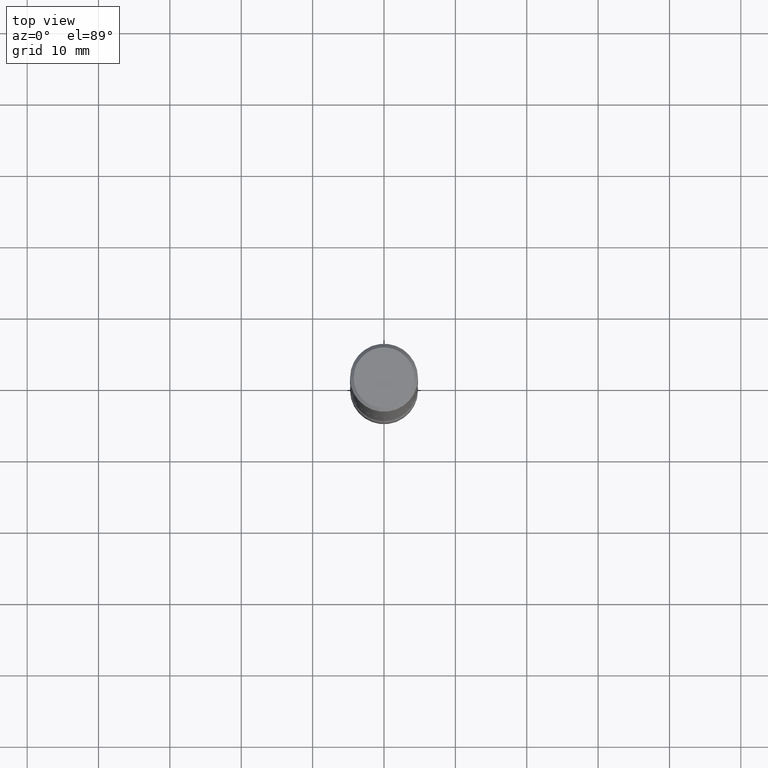
[diagram: clean part render]
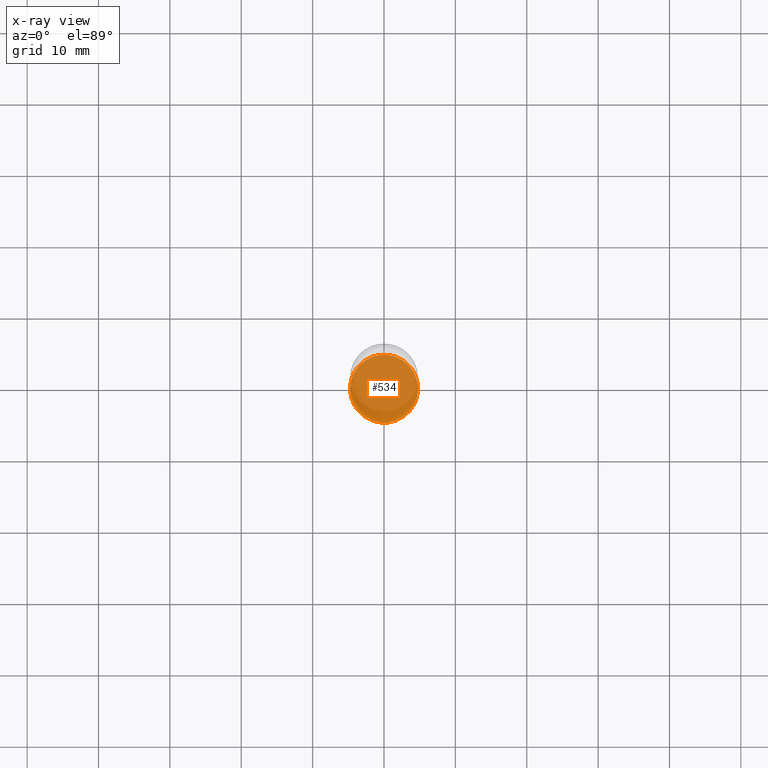
[diagram: x-ray — body ghosted, one internal face saturated and labeled with its STEP entity id]
A machine part, top view, then the same camera in x-ray: the body is ghosted and one INTERNAL B-rep face — a face not visible from any outside direction — is saturated and labeled: STEP entity #534.
In plain terms, the highlighted planar face has unit normal (0, -0, -1).
Its self-contained STEP definition (entity closure, byte-faithful):
#34 = CIRCLE ( 'NONE', #116, 0.1875000000000001110 ) ;
#40 = DIRECTION ( 'NONE',  ( -1.000000000000000000, 6.982962677686265922E-15, -4.876176775795935793E-29 ) ) ;
#51 = DIRECTION ( 'NONE',  ( 1.000000000000000000, -6.982962677686269077E-15, 0.000000000000000000 ) ) ;
#55 = DIRECTION ( 'NONE',  ( -2.445468806185136597E-29, 3.491481338843145583E-15, 1.000000000000000000 ) ) ;
#110 = ORIENTED_EDGE ( 'NONE', *, *, #123, .T. ) ;
#116 = AXIS2_PLACEMENT_3D ( 'NONE', #175, #452, #51 ) ;
#123 = EDGE_CURVE ( 'NONE', #194, #436, #34, .T. ) ;
#138 = CARTESIAN_POINT ( 'NONE',  ( 0.1875000000000001110, -1.352949018801718751E-14, -3.500000000000000444 ) ) ;
#175 = CARTESIAN_POINT ( 'NONE',  ( 8.559140821647978089E-29, -1.222018468595101092E-14, -3.500000000000000444 ) ) ;
#194 = VERTEX_POINT ( 'NONE', #138 ) ;
#205 = ORIENTED_EDGE ( 'NONE', *, *, #338, .T. ) ;
#238 = DIRECTION ( 'NONE',  ( 2.438088387897960049E-29, -3.491481338843145188E-15, -1.000000000000000000 ) ) ;
#278 = CARTESIAN_POINT ( 'NONE',  ( 8.559140821647978089E-29, -1.222018468595101092E-14, -3.500000000000000444 ) ) ;
#338 = EDGE_CURVE ( 'NONE', #436, #194, #515, .T. ) ;
#339 = AXIS2_PLACEMENT_3D ( 'NONE', #440, #238, #40 ) ;
#348 = PLANE ( 'NONE',  #339 ) ;
#378 = CARTESIAN_POINT ( 'NONE',  ( -0.1875000000000001110, -1.173460128107028622E-14, -3.500000000000000444 ) ) ;
#417 = AXIS2_PLACEMENT_3D ( 'NONE', #278, #55, #424 ) ;
#424 = DIRECTION ( 'NONE',  ( 1.000000000000000000, -6.982962677686269077E-15, 0.000000000000000000 ) ) ;
#436 = VERTEX_POINT ( 'NONE', #378 ) ;
#440 = CARTESIAN_POINT ( 'NONE',  ( 8.559140821647978089E-29, -1.222018468595101092E-14, -3.500000000000000444 ) ) ;
#452 = DIRECTION ( 'NONE',  ( -2.445468806185136597E-29, 3.491481338843145583E-15, 1.000000000000000000 ) ) ;
#508 = FACE_OUTER_BOUND ( 'NONE', #543, .T. ) ;
#515 = CIRCLE ( 'NONE', #417, 0.1875000000000001110 ) ;
#534 = ADVANCED_FACE ( 'NONE', ( #508 ), #348, .F. ) ;
#543 = EDGE_LOOP ( 'NONE', ( #110, #205 ) ) ;